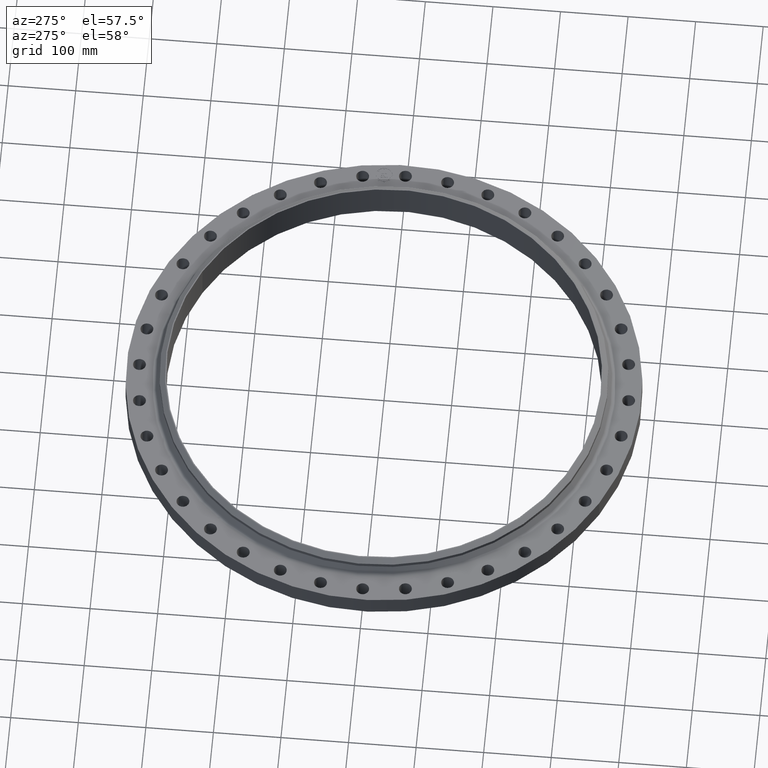
[diagram: clean part render]
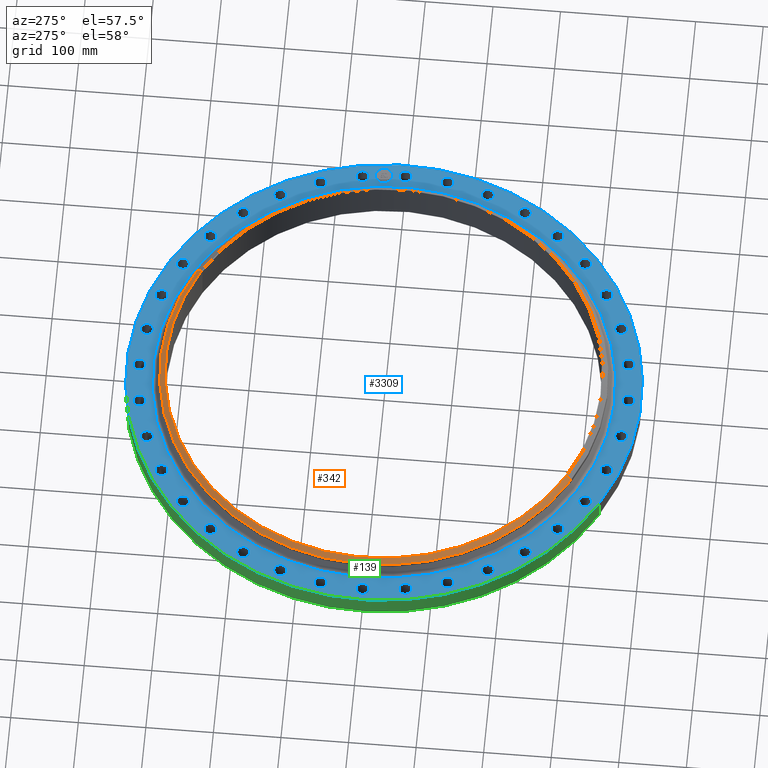
[diagram: same view with three faces highlighted in distinct colors, each labeled with its STEP entity id]
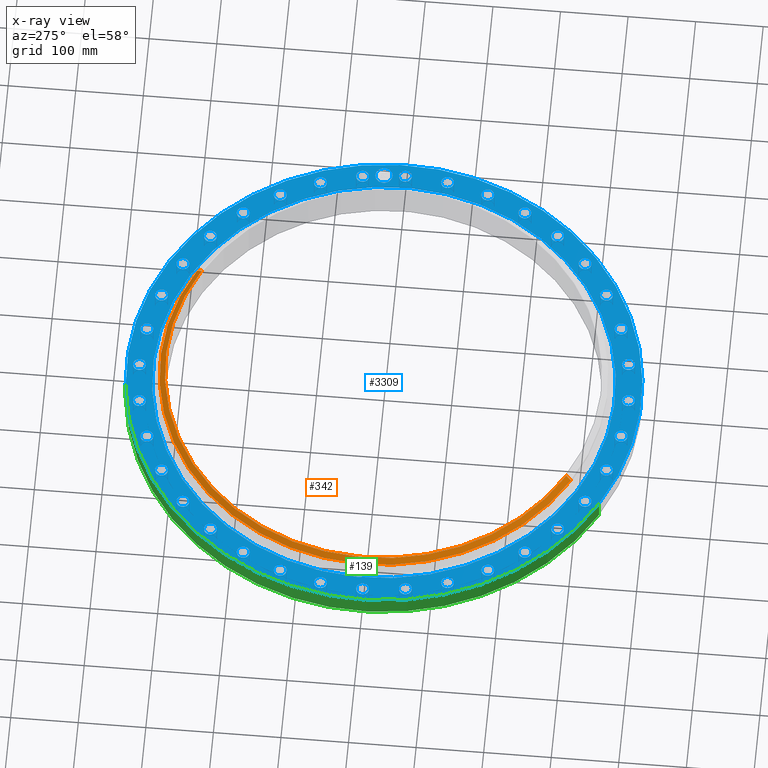
[diagram: x-ray of the same camera — body ghosted, the three highlighted faces saturated]
A machine part, auxiliary view with three faces highlighted in distinct colors.
The next image is the same camera in x-ray (body ghosted, the three faces saturated) — at least one of them is partly hidden behind the body in this view.
Their STEP definitions:

[orange] entity #342 — the highlighted conical surface has half-angle 52.5 deg.
#290=AXIS2_PLACEMENT_3D('Circle Axis2P3D',#288,#289,$) ;
#303=AXIS2_PLACEMENT_3D('Cone Axis2P3D',#300,#301,#302) ;
#333=AXIS2_PLACEMENT_3D('Circle Axis2P3D',#331,#332,$) ;
#266=CARTESIAN_POINT('Vertex',(-6.24691476804,-11.4349007815,2.01021031626)) ;
#273=CARTESIAN_POINT('Vertex',(6.24691476804,11.4349007815,2.01021031626)) ;
#288=CARTESIAN_POINT('Axis2P3D Location',(0.,0.,2.01021031626)) ;
#300=CARTESIAN_POINT('Axis2P3D Location',(0.,0.,2.25000000001)) ;
#305=CARTESIAN_POINT('Line Origine',(6.17200452763,11.2977785062,2.13010515814)) ;
#309=CARTESIAN_POINT('Vertex',(6.09709428722,11.1606562309,2.25000000001)) ;
#316=CARTESIAN_POINT('Vertex',(-6.09709428722,-11.1606562309,2.25000000001)) ;
#319=CARTESIAN_POINT('Line Origine',(-6.17200452763,-11.2977785062,2.13010515814)) ;
#331=CARTESIAN_POINT('Axis2P3D Location',(0.,0.,2.25000000001)) ;
#289=DIRECTION('Axis2P3D Direction',(0.,0.,-0.0393700787402)) ;
#301=DIRECTION('Axis2P3D Direction',(-0.,-0.,-0.0393700787402)) ;
#302=DIRECTION('Axis2P3D XDirection',(-0.0188750212049,-0.0345504945626,0.)) ;
#306=DIRECTION('Vector Direction',(0.014974561121,0.02741075027,-0.023966985394)) ;
#320=DIRECTION('Vector Direction',(-0.014974561121,-0.02741075027,-0.023966985394)) ;
#332=DIRECTION('Axis2P3D Direction',(0.,-0.,-0.0393700787402)) ;
#307=VECTOR('Line Direction',#306,0.0393700787402) ;
#321=VECTOR('Line Direction',#320,0.0393700787402) ;
#337=ORIENTED_EDGE('',*,*,#323,.F.) ;
#338=ORIENTED_EDGE('',*,*,#335,.T.) ;
#339=ORIENTED_EDGE('',*,*,#311,.T.) ;
#340=ORIENTED_EDGE('',*,*,#292,.F.) ;
#342=ADVANCED_FACE('PartBody',(#341),#304,.T.) ;
#291=CIRCLE('generated circle',#290,13.0300000001) ;
#334=CIRCLE('generated circle',#333,12.7175000001) ;
#304=CONICAL_SURFACE('Cone',#303,12.7175000001,0.916297857297) ;
#292=EDGE_CURVE('',#267,#274,#291,.T.) ;
#311=EDGE_CURVE('',#310,#274,#308,.T.) ;
#323=EDGE_CURVE('',#317,#267,#322,.T.) ;
#335=EDGE_CURVE('',#317,#310,#334,.T.) ;
#336=EDGE_LOOP('',(#337,#338,#339,#340)) ;
#341=FACE_OUTER_BOUND('',#336,.T.) ;
#308=LINE('Line',#305,#307) ;
#322=LINE('Line',#319,#321) ;
#267=VERTEX_POINT('',#266) ;
#274=VERTEX_POINT('',#273) ;
#310=VERTEX_POINT('',#309) ;
#317=VERTEX_POINT('',#316) ;

[blue] entity #3309 — the highlighted planar face has unit normal (0, 0, -1).
#65=AXIS2_PLACEMENT_3D('Circle Axis2P3D',#63,#64,$) ;
#89=AXIS2_PLACEMENT_3D('Circle Axis2P3D',#87,#88,$) ;
#123=AXIS2_PLACEMENT_3D('Circle Axis2P3D',#121,#122,$) ;
#147=AXIS2_PLACEMENT_3D('Circle Axis2P3D',#145,#146,$) ;
#164=AXIS2_PLACEMENT_3D('Circle Axis2P3D',#162,#163,$) ;
#199=AXIS2_PLACEMENT_3D('Circle Axis2P3D',#197,#198,$) ;
#1615=AXIS2_PLACEMENT_3D('Circle Axis2P3D',#1613,#1614,$) ;
#1627=AXIS2_PLACEMENT_3D('Circle Axis2P3D',#1625,#1626,$) ;
#1659=AXIS2_PLACEMENT_3D('Circle Axis2P3D',#1657,#1658,$) ;
#1671=AXIS2_PLACEMENT_3D('Circle Axis2P3D',#1669,#1670,$) ;
#1703=AXIS2_PLACEMENT_3D('Circle Axis2P3D',#1701,#1702,$) ;
#1715=AXIS2_PLACEMENT_3D('Circle Axis2P3D',#1713,#1714,$) ;
#1747=AXIS2_PLACEMENT_3D('Circle Axis2P3D',#1745,#1746,$) ;
#1759=AXIS2_PLACEMENT_3D('Circle Axis2P3D',#1757,#1758,$) ;
#1791=AXIS2_PLACEMENT_3D('Circle Axis2P3D',#1789,#1790,$) ;
#1803=AXIS2_PLACEMENT_3D('Circle Axis2P3D',#1801,#1802,$) ;
#1835=AXIS2_PLACEMENT_3D('Circle Axis2P3D',#1833,#1834,$) ;
#1847=AXIS2_PLACEMENT_3D('Circle Axis2P3D',#1845,#1846,$) ;
#1879=AXIS2_PLACEMENT_3D('Circle Axis2P3D',#1877,#1878,$) ;
#1891=AXIS2_PLACEMENT_3D('Circle Axis2P3D',#1889,#1890,$) ;
#1923=AXIS2_PLACEMENT_3D('Circle Axis2P3D',#1921,#1922,$) ;
#1935=AXIS2_PLACEMENT_3D('Circle Axis2P3D',#1933,#1934,$) ;
#1967=AXIS2_PLACEMENT_3D('Circle Axis2P3D',#1965,#1966,$) ;
#1979=AXIS2_PLACEMENT_3D('Circle Axis2P3D',#1977,#1978,$) ;
#2011=AXIS2_PLACEMENT_3D('Circle Axis2P3D',#2009,#2010,$) ;
#2023=AXIS2_PLACEMENT_3D('Circle Axis2P3D',#2021,#2022,$) ;
#2055=AXIS2_PLACEMENT_3D('Circle Axis2P3D',#2053,#2054,$) ;
#2067=AXIS2_PLACEMENT_3D('Circle Axis2P3D',#2065,#2066,$) ;
#2099=AXIS2_PLACEMENT_3D('Circle Axis2P3D',#2097,#2098,$) ;
#2111=AXIS2_PLACEMENT_3D('Circle Axis2P3D',#2109,#2110,$) ;
#2143=AXIS2_PLACEMENT_3D('Circle Axis2P3D',#2141,#2142,$) ;
#2155=AXIS2_PLACEMENT_3D('Circle Axis2P3D',#2153,#2154,$) ;
#2187=AXIS2_PLACEMENT_3D('Circle Axis2P3D',#2185,#2186,$) ;
#2199=AXIS2_PLACEMENT_3D('Circle Axis2P3D',#2197,#2198,$) ;
#2231=AXIS2_PLACEMENT_3D('Circle Axis2P3D',#2229,#2230,$) ;
#2243=AXIS2_PLACEMENT_3D('Circle Axis2P3D',#2241,#2242,$) ;
#2275=AXIS2_PLACEMENT_3D('Circle Axis2P3D',#2273,#2274,$) ;
#2287=AXIS2_PLACEMENT_3D('Circle Axis2P3D',#2285,#2286,$) ;
#2319=AXIS2_PLACEMENT_3D('Circle Axis2P3D',#2317,#2318,$) ;
#2331=AXIS2_PLACEMENT_3D('Circle Axis2P3D',#2329,#2330,$) ;
#2363=AXIS2_PLACEMENT_3D('Circle Axis2P3D',#2361,#2362,$) ;
#2375=AXIS2_PLACEMENT_3D('Circle Axis2P3D',#2373,#2374,$) ;
#2407=AXIS2_PLACEMENT_3D('Circle Axis2P3D',#2405,#2406,$) ;
#2419=AXIS2_PLACEMENT_3D('Circle Axis2P3D',#2417,#2418,$) ;
#2451=AXIS2_PLACEMENT_3D('Circle Axis2P3D',#2449,#2450,$) ;
#2463=AXIS2_PLACEMENT_3D('Circle Axis2P3D',#2461,#2462,$) ;
#2495=AXIS2_PLACEMENT_3D('Circle Axis2P3D',#2493,#2494,$) ;
#2507=AXIS2_PLACEMENT_3D('Circle Axis2P3D',#2505,#2506,$) ;
#2539=AXIS2_PLACEMENT_3D('Circle Axis2P3D',#2537,#2538,$) ;
#2551=AXIS2_PLACEMENT_3D('Circle Axis2P3D',#2549,#2550,$) ;
#2583=AXIS2_PLACEMENT_3D('Circle Axis2P3D',#2581,#2582,$) ;
#2595=AXIS2_PLACEMENT_3D('Circle Axis2P3D',#2593,#2594,$) ;
#2627=AXIS2_PLACEMENT_3D('Circle Axis2P3D',#2625,#2626,$) ;
#2639=AXIS2_PLACEMENT_3D('Circle Axis2P3D',#2637,#2638,$) ;
#2671=AXIS2_PLACEMENT_3D('Circle Axis2P3D',#2669,#2670,$) ;
#2683=AXIS2_PLACEMENT_3D('Circle Axis2P3D',#2681,#2682,$) ;
#2715=AXIS2_PLACEMENT_3D('Circle Axis2P3D',#2713,#2714,$) ;
#2727=AXIS2_PLACEMENT_3D('Circle Axis2P3D',#2725,#2726,$) ;
#2759=AXIS2_PLACEMENT_3D('Circle Axis2P3D',#2757,#2758,$) ;
#2771=AXIS2_PLACEMENT_3D('Circle Axis2P3D',#2769,#2770,$) ;
#2803=AXIS2_PLACEMENT_3D('Circle Axis2P3D',#2801,#2802,$) ;
#2815=AXIS2_PLACEMENT_3D('Circle Axis2P3D',#2813,#2814,$) ;
#2847=AXIS2_PLACEMENT_3D('Circle Axis2P3D',#2845,#2846,$) ;
#2859=AXIS2_PLACEMENT_3D('Circle Axis2P3D',#2857,#2858,$) ;
#2891=AXIS2_PLACEMENT_3D('Circle Axis2P3D',#2889,#2890,$) ;
#2903=AXIS2_PLACEMENT_3D('Circle Axis2P3D',#2901,#2902,$) ;
#2935=AXIS2_PLACEMENT_3D('Circle Axis2P3D',#2933,#2934,$) ;
#2947=AXIS2_PLACEMENT_3D('Circle Axis2P3D',#2945,#2946,$) ;
#2979=AXIS2_PLACEMENT_3D('Circle Axis2P3D',#2977,#2978,$) ;
#2991=AXIS2_PLACEMENT_3D('Circle Axis2P3D',#2989,#2990,$) ;
#3023=AXIS2_PLACEMENT_3D('Circle Axis2P3D',#3021,#3022,$) ;
#3035=AXIS2_PLACEMENT_3D('Circle Axis2P3D',#3033,#3034,$) ;
#3067=AXIS2_PLACEMENT_3D('Circle Axis2P3D',#3065,#3066,$) ;
#3079=AXIS2_PLACEMENT_3D('Circle Axis2P3D',#3077,#3078,$) ;
#3111=AXIS2_PLACEMENT_3D('Circle Axis2P3D',#3109,#3110,$) ;
#3123=AXIS2_PLACEMENT_3D('Circle Axis2P3D',#3121,#3122,$) ;
#3137=AXIS2_PLACEMENT_3D('Plane Axis2P3D',#3134,#3135,#3136) ;
#3293=AXIS2_PLACEMENT_3D('Circle Axis2P3D',#3291,#3292,$) ;
#3302=AXIS2_PLACEMENT_3D('Circle Axis2P3D',#3300,#3301,$) ;
#46=CARTESIAN_POINT('Vertex',(13.9209065393,0.179784576977,1.25000000001)) ;
#60=CARTESIAN_POINT('Vertex',(14.5790934608,-0.179784576977,1.25000000001)) ;
#63=CARTESIAN_POINT('Axis2P3D Location',(14.2500000001,0.,1.25000000001)) ;
#87=CARTESIAN_POINT('Axis2P3D Location',(14.2500000001,0.,1.25000000001)) ;
#118=CARTESIAN_POINT('Vertex',(-7.19138307909,-13.1637384284,1.25000000001)) ;
#121=CARTESIAN_POINT('Axis2P3D Location',(0.,0.,1.25000000001)) ;
#125=CARTESIAN_POINT('Vertex',(7.19138307909,13.1637384284,1.25000000001)) ;
#145=CARTESIAN_POINT('Axis2P3D Location',(0.,0.,1.25000000001)) ;
#162=CARTESIAN_POINT('Axis2P3D Location',(0.,0.,1.25000000001)) ;
#166=CARTESIAN_POINT('Vertex',(6.45300255236,11.8121419403,1.25000000001)) ;
#168=CARTESIAN_POINT('Vertex',(-6.45300255236,-11.8121419403,1.25000000001)) ;
#197=CARTESIAN_POINT('Axis2P3D Location',(0.,0.,1.25000000001)) ;
#1603=CARTESIAN_POINT('Vertex',(-13.9209065393,-0.179784576977,1.25000000001)) ;
#1610=CARTESIAN_POINT('Vertex',(-14.5790934608,0.179784576977,1.25000000001)) ;
#1613=CARTESIAN_POINT('Axis2P3D Location',(-14.2500000001,-1.74512168879E-015,1.25000000001)) ;
#1625=CARTESIAN_POINT('Axis2P3D Location',(-14.2500000001,-1.74512168879E-015,1.25000000001)) ;
#1647=CARTESIAN_POINT('Vertex',(13.6781974247,2.59439329731,1.25000000001)) ;
#1654=CARTESIAN_POINT('Vertex',(14.3888235362,2.35457976622,1.25000000001)) ;
#1657=CARTESIAN_POINT('Axis2P3D Location',(14.0335104805,2.47448653176,1.25000000001)) ;
#1669=CARTESIAN_POINT('Axis2P3D Location',(14.0335104805,2.47448653176,1.25000000001)) ;
#1691=CARTESIAN_POINT('Vertex',(-13.6781974247,-2.59439329731,1.25000000001)) ;
#1698=CARTESIAN_POINT('Vertex',(-14.3888235362,-2.35457976622,1.25000000001)) ;
#1701=CARTESIAN_POINT('Axis2P3D Location',(-14.0335104805,-2.47448653176,1.25000000001)) ;
#1713=CARTESIAN_POINT('Axis2P3D Location',(-14.0335104805,-2.47448653176,1.25000000001)) ;
#1735=CARTESIAN_POINT('Vertex',(13.7406359531,-2.24028680675,1.25000000001)) ;
#1742=CARTESIAN_POINT('Vertex',(14.3263850079,-2.70868625678,1.25000000001)) ;
#1745=CARTESIAN_POINT('Axis2P3D Location',(14.0335104805,-2.47448653176,1.25000000001)) ;
#1757=CARTESIAN_POINT('Axis2P3D Location',(14.0335104805,-2.47448653176,1.25000000001)) ;
#1779=CARTESIAN_POINT('Vertex',(-7.11615128054,11.9659664183,1.25000000001)) ;
#1786=CARTESIAN_POINT('Vertex',(-7.13384871951,12.7157575897,1.25000000001)) ;
#1789=CARTESIAN_POINT('Axis2P3D Location',(-7.12500000003,12.340862004,1.25000000001)) ;
#1801=CARTESIAN_POINT('Axis2P3D Location',(-7.12500000003,12.340862004,1.25000000001)) ;
#1823=CARTESIAN_POINT('Vertex',(10.5484697992,9.08590921525,1.25000000001)) ;
#1830=CARTESIAN_POINT('Vertex',(11.2837968298,9.23353766089,1.25000000001)) ;
#1833=CARTESIAN_POINT('Axis2P3D Location',(10.9161333145,9.15972343807,1.25000000001)) ;
#1845=CARTESIAN_POINT('Axis2P3D Location',(10.9161333145,9.15972343807,1.25000000001)) ;
#1867=CARTESIAN_POINT('Vertex',(-13.1428630965,4.59228820949,1.25000000001)) ;
#1874=CARTESIAN_POINT('Vertex',(-13.638376596,5.15528587533,1.25000000001)) ;
#1877=CARTESIAN_POINT('Axis2P3D Location',(-13.3906198463,4.87378704241,1.25000000001)) ;
#1889=CARTESIAN_POINT('Axis2P3D Location',(-13.3906198463,4.87378704241,1.25000000001)) ;
#1911=CARTESIAN_POINT('Vertex',(12.1457509953,-6.8047552588,1.25000000001)) ;
#1918=CARTESIAN_POINT('Vertex',(12.5359730127,-7.44524474125,1.25000000001)) ;
#1921=CARTESIAN_POINT('Axis2P3D Location',(12.340862004,-7.12500000003,1.25000000001)) ;
#1933=CARTESIAN_POINT('Axis2P3D Location',(12.340862004,-7.12500000003,1.25000000001)) ;
#1955=CARTESIAN_POINT('Vertex',(2.24028680675,13.7406359531,1.25000000001)) ;
#1962=CARTESIAN_POINT('Vertex',(2.70868625678,14.3263850079,1.25000000001)) ;
#1965=CARTESIAN_POINT('Axis2P3D Location',(2.47448653176,14.0335104805,1.25000000001)) ;
#1977=CARTESIAN_POINT('Axis2P3D Location',(2.47448653176,14.0335104805,1.25000000001)) ;
#1999=CARTESIAN_POINT('Vertex',(10.7795963961,-8.81046326294,1.25000000001)) ;
#2006=CARTESIAN_POINT('Vertex',(11.0526702328,-9.5089836132,1.25000000001)) ;
#2009=CARTESIAN_POINT('Axis2P3D Location',(10.9161333145,-9.15972343807,1.25000000001)) ;
#2021=CARTESIAN_POINT('Axis2P3D Location',(10.9161333145,-9.15972343807,1.25000000001)) ;
#2043=CARTESIAN_POINT('Vertex',(11.9659664183,7.11615128054,1.25000000001)) ;
#2050=CARTESIAN_POINT('Vertex',(12.7157575897,7.13384871951,1.25000000001)) ;
#2053=CARTESIAN_POINT('Axis2P3D Location',(12.340862004,7.12500000003,1.25000000001)) ;
#2065=CARTESIAN_POINT('Axis2P3D Location',(12.340862004,7.12500000003,1.25000000001)) ;
#2087=CARTESIAN_POINT('Vertex',(9.08590921525,-10.5484697992,1.25000000001)) ;
#2094=CARTESIAN_POINT('Vertex',(9.23353766089,-11.2837968298,1.25000000001)) ;
#2097=CARTESIAN_POINT('Axis2P3D Location',(9.15972343807,-10.9161333145,1.25000000001)) ;
#2109=CARTESIAN_POINT('Axis2P3D Location',(9.15972343807,-10.9161333145,1.25000000001)) ;
#2131=CARTESIAN_POINT('Vertex',(-10.7795963961,8.81046326294,1.25000000001)) ;
#2138=CARTESIAN_POINT('Vertex',(-11.0526702328,9.5089836132,1.25000000001)) ;
#2141=CARTESIAN_POINT('Axis2P3D Location',(-10.9161333145,9.15972343807,1.25000000001)) ;
#2153=CARTESIAN_POINT('Axis2P3D Location',(-10.9161333145,9.15972343807,1.25000000001)) ;
#2175=CARTESIAN_POINT('Vertex',(7.11615128054,-11.9659664183,1.25000000001)) ;
#2182=CARTESIAN_POINT('Vertex',(7.13384871951,-12.7157575897,1.25000000001)) ;
#2185=CARTESIAN_POINT('Axis2P3D Location',(7.12500000003,-12.340862004,1.25000000001)) ;
#2197=CARTESIAN_POINT('Axis2P3D Location',(7.12500000003,-12.340862004,1.25000000001)) ;
#2219=CARTESIAN_POINT('Vertex',(-2.59439329731,13.6781974247,1.25000000001)) ;
#2226=CARTESIAN_POINT('Vertex',(-2.35457976622,14.3888235362,1.25000000001)) ;
#2229=CARTESIAN_POINT('Axis2P3D Location',(-2.47448653176,14.0335104805,1.25000000001)) ;
#2241=CARTESIAN_POINT('Axis2P3D Location',(-2.47448653176,14.0335104805,1.25000000001)) ;
#2263=CARTESIAN_POINT('Vertex',(4.93017269013,-13.0198832029,1.25000000001)) ;
#2270=CARTESIAN_POINT('Vertex',(4.81740139469,-13.7613564896,1.25000000001)) ;
#2273=CARTESIAN_POINT('Axis2P3D Location',(4.87378704241,-13.3906198463,1.25000000001)) ;
#2285=CARTESIAN_POINT('Axis2P3D Location',(4.87378704241,-13.3906198463,1.25000000001)) ;
#2307=CARTESIAN_POINT('Vertex',(6.8047552588,12.1457509953,1.25000000001)) ;
#2314=CARTESIAN_POINT('Vertex',(7.44524474125,12.5359730127,1.25000000001)) ;
#2317=CARTESIAN_POINT('Axis2P3D Location',(7.12500000003,12.340862004,1.25000000001)) ;
#2329=CARTESIAN_POINT('Axis2P3D Location',(7.12500000003,12.340862004,1.25000000001)) ;
#2351=CARTESIAN_POINT('Vertex',(2.59439329731,-13.6781974247,1.25000000001)) ;
#2358=CARTESIAN_POINT('Vertex',(2.35457976622,-14.3888235362,1.25000000001)) ;
#2361=CARTESIAN_POINT('Axis2P3D Location',(2.47448653176,-14.0335104805,1.25000000001)) ;
#2373=CARTESIAN_POINT('Axis2P3D Location',(2.47448653176,-14.0335104805,1.25000000001)) ;
#2395=CARTESIAN_POINT('Vertex',(13.0198832029,4.93017269013,1.25000000001)) ;
#2402=CARTESIAN_POINT('Vertex',(13.7613564896,4.81740139469,1.25000000001)) ;
#2405=CARTESIAN_POINT('Axis2P3D Location',(13.3906198463,4.87378704241,1.25000000001)) ;
#2417=CARTESIAN_POINT('Axis2P3D Location',(13.3906198463,4.87378704241,1.25000000001)) ;
#2439=CARTESIAN_POINT('Vertex',(0.179784576977,-13.9209065393,1.25000000001)) ;
#2446=CARTESIAN_POINT('Vertex',(-0.179784576977,-14.5790934608,1.25000000001)) ;
#2449=CARTESIAN_POINT('Axis2P3D Location',(8.72560844396E-016,-14.2500000001,1.25000000001)) ;
#2461=CARTESIAN_POINT('Axis2P3D Location',(8.72560844396E-016,-14.2500000001,1.25000000001)) ;
#2483=CARTESIAN_POINT('Vertex',(-13.7406359531,2.24028680675,1.25000000001)) ;
#2490=CARTESIAN_POINT('Vertex',(-14.3263850079,2.70868625678,1.25000000001)) ;
#2493=CARTESIAN_POINT('Axis2P3D Location',(-14.0335104805,2.47448653176,1.25000000001)) ;
#2505=CARTESIAN_POINT('Axis2P3D Location',(-14.0335104805,2.47448653176,1.25000000001)) ;
#2527=CARTESIAN_POINT('Vertex',(-2.24028680675,-13.7406359531,1.25000000001)) ;
#2534=CARTESIAN_POINT('Vertex',(-2.70868625678,-14.3263850079,1.25000000001)) ;
#2537=CARTESIAN_POINT('Axis2P3D Location',(-2.47448653176,-14.0335104805,1.25000000001)) ;
#2549=CARTESIAN_POINT('Axis2P3D Location',(-2.47448653176,-14.0335104805,1.25000000001)) ;
#2571=CARTESIAN_POINT('Vertex',(-12.1457509953,6.8047552588,1.25000000001)) ;
#2578=CARTESIAN_POINT('Vertex',(-12.5359730127,7.44524474125,1.25000000001)) ;
#2581=CARTESIAN_POINT('Axis2P3D Location',(-12.340862004,7.12500000003,1.25000000001)) ;
#2593=CARTESIAN_POINT('Axis2P3D Location',(-12.340862004,7.12500000003,1.25000000001)) ;
#2615=CARTESIAN_POINT('Vertex',(-4.59228820949,-13.1428630965,1.25000000001)) ;
#2622=CARTESIAN_POINT('Vertex',(-5.15528587533,-13.638376596,1.25000000001)) ;
#2625=CARTESIAN_POINT('Axis2P3D Location',(-4.87378704241,-13.3906198463,1.25000000001)) ;
#2637=CARTESIAN_POINT('Axis2P3D Location',(-4.87378704241,-13.3906198463,1.25000000001)) ;
#2659=CARTESIAN_POINT('Vertex',(-9.08590921525,10.5484697992,1.25000000001)) ;
#2666=CARTESIAN_POINT('Vertex',(-9.23353766089,11.2837968298,1.25000000001)) ;
#2669=CARTESIAN_POINT('Axis2P3D Location',(-9.15972343807,10.9161333145,1.25000000001)) ;
#2681=CARTESIAN_POINT('Axis2P3D Location',(-9.15972343807,10.9161333145,1.25000000001)) ;
#2703=CARTESIAN_POINT('Vertex',(-6.8047552588,-12.1457509953,1.25000000001)) ;
#2710=CARTESIAN_POINT('Vertex',(-7.44524474125,-12.5359730127,1.25000000001)) ;
#2713=CARTESIAN_POINT('Axis2P3D Location',(-7.12500000003,-12.340862004,1.25000000001)) ;
#2725=CARTESIAN_POINT('Axis2P3D Location',(-7.12500000003,-12.340862004,1.25000000001)) ;
#2747=CARTESIAN_POINT('Vertex',(-4.93017269013,13.0198832029,1.25000000001)) ;
#2754=CARTESIAN_POINT('Vertex',(-4.81740139469,13.7613564896,1.25000000001)) ;
#2757=CARTESIAN_POINT('Axis2P3D Location',(-4.87378704241,13.3906198463,1.25000000001)) ;
#2769=CARTESIAN_POINT('Axis2P3D Location',(-4.87378704241,13.3906198463,1.25000000001)) ;
#2791=CARTESIAN_POINT('Vertex',(-8.81046326294,-10.7795963961,1.25000000001)) ;
#2798=CARTESIAN_POINT('Vertex',(-9.5089836132,-11.0526702328,1.25000000001)) ;
#2801=CARTESIAN_POINT('Axis2P3D Location',(-9.15972343807,-10.9161333145,1.25000000001)) ;
#2813=CARTESIAN_POINT('Axis2P3D Location',(-9.15972343807,-10.9161333145,1.25000000001)) ;
#2835=CARTESIAN_POINT('Vertex',(-0.179784576977,13.9209065393,1.25000000001)) ;
#2842=CARTESIAN_POINT('Vertex',(0.179784576977,14.5790934608,1.25000000001)) ;
#2845=CARTESIAN_POINT('Axis2P3D Location',(-4.8556124096E-015,14.2500000001,1.25000000001)) ;
#2857=CARTESIAN_POINT('Axis2P3D Location',(-4.8556124096E-015,14.2500000001,1.25000000001)) ;
#2879=CARTESIAN_POINT('Vertex',(-10.5484697992,-9.08590921525,1.25000000001)) ;
#2886=CARTESIAN_POINT('Vertex',(-11.2837968298,-9.23353766089,1.25000000001)) ;
#2889=CARTESIAN_POINT('Axis2P3D Location',(-10.9161333145,-9.15972343807,1.25000000001)) ;
#2901=CARTESIAN_POINT('Axis2P3D Location',(-10.9161333145,-9.15972343807,1.25000000001)) ;
#2923=CARTESIAN_POINT('Vertex',(4.59228820949,13.1428630965,1.25000000001)) ;
#2930=CARTESIAN_POINT('Vertex',(5.15528587533,13.638376596,1.25000000001)) ;
#2933=CARTESIAN_POINT('Axis2P3D Location',(4.87378704241,13.3906198463,1.25000000001)) ;
#2945=CARTESIAN_POINT('Axis2P3D Location',(4.87378704241,13.3906198463,1.25000000001)) ;
#2967=CARTESIAN_POINT('Vertex',(-11.9659664183,-7.11615128054,1.25000000001)) ;
#2974=CARTESIAN_POINT('Vertex',(-12.7157575897,-7.13384871951,1.25000000001)) ;
#2977=CARTESIAN_POINT('Axis2P3D Location',(-12.340862004,-7.12500000003,1.25000000001)) ;
#2989=CARTESIAN_POINT('Axis2P3D Location',(-12.340862004,-7.12500000003,1.25000000001)) ;
#3011=CARTESIAN_POINT('Vertex',(8.81046326294,10.7795963961,1.25000000001)) ;
#3018=CARTESIAN_POINT('Vertex',(9.5089836132,11.0526702328,1.25000000001)) ;
#3021=CARTESIAN_POINT('Axis2P3D Location',(9.15972343807,10.9161333145,1.25000000001)) ;
#3033=CARTESIAN_POINT('Axis2P3D Location',(9.15972343807,10.9161333145,1.25000000001)) ;
#3055=CARTESIAN_POINT('Vertex',(-13.0198832029,-4.93017269013,1.25000000001)) ;
#3062=CARTESIAN_POINT('Vertex',(-13.7613564896,-4.81740139469,1.25000000001)) ;
#3065=CARTESIAN_POINT('Axis2P3D Location',(-13.3906198463,-4.87378704241,1.25000000001)) ;
#3077=CARTESIAN_POINT('Axis2P3D Location',(-13.3906198463,-4.87378704241,1.25000000001)) ;
#3099=CARTESIAN_POINT('Vertex',(13.1428630965,-4.59228820949,1.25000000001)) ;
#3106=CARTESIAN_POINT('Vertex',(13.638376596,-5.15528587533,1.25000000001)) ;
#3109=CARTESIAN_POINT('Axis2P3D Location',(13.3906198463,-4.87378704241,1.25000000001)) ;
#3121=CARTESIAN_POINT('Axis2P3D Location',(13.3906198463,-4.87378704241,1.25000000001)) ;
#3134=CARTESIAN_POINT('Axis2P3D Location',(0.,15.0000000001,1.25000000001)) ;
#3291=CARTESIAN_POINT('Axis2P3D Location',(14.1957744479,1.24196933416,1.25000000001)) ;
#3295=CARTESIAN_POINT('Vertex',(14.1521966764,1.74006554156,1.25000000001)) ;
#3297=CARTESIAN_POINT('Vertex',(14.2393522194,0.743873126753,1.25000000001)) ;
#3300=CARTESIAN_POINT('Axis2P3D Location',(14.1957744479,1.24196933416,1.25000000001)) ;
#64=DIRECTION('Axis2P3D Direction',(0.,-0.,-0.0393700787402)) ;
#88=DIRECTION('Axis2P3D Direction',(0.,-0.,-0.0393700787402)) ;
#122=DIRECTION('Axis2P3D Direction',(0.,0.,-0.0393700787402)) ;
#146=DIRECTION('Axis2P3D Direction',(0.,0.,-0.0393700787402)) ;
#163=DIRECTION('Axis2P3D Direction',(0.,0.,-0.0393700787402)) ;
#198=DIRECTION('Axis2P3D Direction',(0.,0.,-0.0393700787402)) ;
#1614=DIRECTION('Axis2P3D Direction',(-0.,0.,-0.0393700787402)) ;
#1626=DIRECTION('Axis2P3D Direction',(-0.,0.,-0.0393700787402)) ;
#1658=DIRECTION('Axis2P3D Direction',(0.,0.,-0.0393700787402)) ;
#1670=DIRECTION('Axis2P3D Direction',(0.,0.,-0.0393700787402)) ;
#1702=DIRECTION('Axis2P3D Direction',(-0.,0.,-0.0393700787402)) ;
#1714=DIRECTION('Axis2P3D Direction',(-0.,0.,-0.0393700787402)) ;
#1746=DIRECTION('Axis2P3D Direction',(0.,-0.,-0.0393700787402)) ;
#1758=DIRECTION('Axis2P3D Direction',(0.,-0.,-0.0393700787402)) ;
#1790=DIRECTION('Axis2P3D Direction',(0.,0.,-0.0393700787402)) ;
#1802=DIRECTION('Axis2P3D Direction',(0.,0.,-0.0393700787402)) ;
#1834=DIRECTION('Axis2P3D Direction',(0.,0.,-0.0393700787402)) ;
#1846=DIRECTION('Axis2P3D Direction',(0.,0.,-0.0393700787402)) ;
#1878=DIRECTION('Axis2P3D Direction',(0.,0.,-0.0393700787402)) ;
#1890=DIRECTION('Axis2P3D Direction',(0.,0.,-0.0393700787402)) ;
#1922=DIRECTION('Axis2P3D Direction',(0.,-0.,-0.0393700787402)) ;
#1934=DIRECTION('Axis2P3D Direction',(0.,-0.,-0.0393700787402)) ;
#1966=DIRECTION('Axis2P3D Direction',(0.,0.,-0.0393700787402)) ;
#1978=DIRECTION('Axis2P3D Direction',(0.,0.,-0.0393700787402)) ;
#2010=DIRECTION('Axis2P3D Direction',(0.,-0.,-0.0393700787402)) ;
#2022=DIRECTION('Axis2P3D Direction',(0.,-0.,-0.0393700787402)) ;
#2054=DIRECTION('Axis2P3D Direction',(0.,0.,-0.0393700787402)) ;
#2066=DIRECTION('Axis2P3D Direction',(0.,0.,-0.0393700787402)) ;
#2098=DIRECTION('Axis2P3D Direction',(0.,-0.,-0.0393700787402)) ;
#2110=DIRECTION('Axis2P3D Direction',(0.,-0.,-0.0393700787402)) ;
#2142=DIRECTION('Axis2P3D Direction',(0.,0.,-0.0393700787402)) ;
#2154=DIRECTION('Axis2P3D Direction',(0.,0.,-0.0393700787402)) ;
#2186=DIRECTION('Axis2P3D Direction',(0.,-0.,-0.0393700787402)) ;
#2198=DIRECTION('Axis2P3D Direction',(0.,-0.,-0.0393700787402)) ;
#2230=DIRECTION('Axis2P3D Direction',(0.,0.,-0.0393700787402)) ;
#2242=DIRECTION('Axis2P3D Direction',(0.,0.,-0.0393700787402)) ;
#2274=DIRECTION('Axis2P3D Direction',(0.,-0.,-0.0393700787402)) ;
#2286=DIRECTION('Axis2P3D Direction',(0.,-0.,-0.0393700787402)) ;
#2318=DIRECTION('Axis2P3D Direction',(0.,0.,-0.0393700787402)) ;
#2330=DIRECTION('Axis2P3D Direction',(0.,0.,-0.0393700787402)) ;
#2362=DIRECTION('Axis2P3D Direction',(0.,-0.,-0.0393700787402)) ;
#2374=DIRECTION('Axis2P3D Direction',(0.,-0.,-0.0393700787402)) ;
#2406=DIRECTION('Axis2P3D Direction',(0.,0.,-0.0393700787402)) ;
#2418=DIRECTION('Axis2P3D Direction',(0.,0.,-0.0393700787402)) ;
#2450=DIRECTION('Axis2P3D Direction',(0.,-0.,-0.0393700787402)) ;
#2462=DIRECTION('Axis2P3D Direction',(0.,-0.,-0.0393700787402)) ;
#2494=DIRECTION('Axis2P3D Direction',(0.,0.,-0.0393700787402)) ;
#2506=DIRECTION('Axis2P3D Direction',(0.,0.,-0.0393700787402)) ;
#2538=DIRECTION('Axis2P3D Direction',(-0.,0.,-0.0393700787402)) ;
#2550=DIRECTION('Axis2P3D Direction',(-0.,0.,-0.0393700787402)) ;
#2582=DIRECTION('Axis2P3D Direction',(0.,0.,-0.0393700787402)) ;
#2594=DIRECTION('Axis2P3D Direction',(0.,0.,-0.0393700787402)) ;
#2626=DIRECTION('Axis2P3D Direction',(-0.,0.,-0.0393700787402)) ;
#2638=DIRECTION('Axis2P3D Direction',(-0.,0.,-0.0393700787402)) ;
#2670=DIRECTION('Axis2P3D Direction',(0.,0.,-0.0393700787402)) ;
#2682=DIRECTION('Axis2P3D Direction',(0.,0.,-0.0393700787402)) ;
#2714=DIRECTION('Axis2P3D Direction',(-0.,0.,-0.0393700787402)) ;
#2726=DIRECTION('Axis2P3D Direction',(-0.,0.,-0.0393700787402)) ;
#2758=DIRECTION('Axis2P3D Direction',(0.,0.,-0.0393700787402)) ;
#2770=DIRECTION('Axis2P3D Direction',(0.,0.,-0.0393700787402)) ;
#2802=DIRECTION('Axis2P3D Direction',(-0.,0.,-0.0393700787402)) ;
#2814=DIRECTION('Axis2P3D Direction',(-0.,0.,-0.0393700787402)) ;
#2846=DIRECTION('Axis2P3D Direction',(0.,0.,-0.0393700787402)) ;
#2858=DIRECTION('Axis2P3D Direction',(0.,0.,-0.0393700787402)) ;
#2890=DIRECTION('Axis2P3D Direction',(-0.,0.,-0.0393700787402)) ;
#2902=DIRECTION('Axis2P3D Direction',(-0.,0.,-0.0393700787402)) ;
#2934=DIRECTION('Axis2P3D Direction',(0.,0.,-0.0393700787402)) ;
#2946=DIRECTION('Axis2P3D Direction',(0.,0.,-0.0393700787402)) ;
#2978=DIRECTION('Axis2P3D Direction',(-0.,0.,-0.0393700787402)) ;
#2990=DIRECTION('Axis2P3D Direction',(-0.,0.,-0.0393700787402)) ;
#3022=DIRECTION('Axis2P3D Direction',(0.,0.,-0.0393700787402)) ;
#3034=DIRECTION('Axis2P3D Direction',(0.,0.,-0.0393700787402)) ;
#3066=DIRECTION('Axis2P3D Direction',(-0.,0.,-0.0393700787402)) ;
#3078=DIRECTION('Axis2P3D Direction',(-0.,0.,-0.0393700787402)) ;
#3110=DIRECTION('Axis2P3D Direction',(0.,-0.,-0.0393700787402)) ;
#3122=DIRECTION('Axis2P3D Direction',(0.,-0.,-0.0393700787402)) ;
#3135=DIRECTION('Axis2P3D Direction',(0.,0.,-0.0393700787402)) ;
#3136=DIRECTION('Axis2P3D XDirection',(0.0393700787402,0.,0.)) ;
#3292=DIRECTION('Axis2P3D Direction',(0.,0.,-0.0393700787402)) ;
#3301=DIRECTION('Axis2P3D Direction',(0.,0.,-0.0393700787402)) ;
#3140=ORIENTED_EDGE('',*,*,#149,.F.) ;
#3141=ORIENTED_EDGE('',*,*,#127,.F.) ;
#3144=ORIENTED_EDGE('',*,*,#67,.T.) ;
#3145=ORIENTED_EDGE('',*,*,#91,.T.) ;
#3148=ORIENTED_EDGE('',*,*,#201,.T.) ;
#3149=ORIENTED_EDGE('',*,*,#170,.T.) ;
#3152=ORIENTED_EDGE('',*,*,#1761,.T.) ;
#3153=ORIENTED_EDGE('',*,*,#1749,.T.) ;
#3156=ORIENTED_EDGE('',*,*,#3125,.T.) ;
#3157=ORIENTED_EDGE('',*,*,#3113,.T.) ;
#3160=ORIENTED_EDGE('',*,*,#1937,.T.) ;
#3161=ORIENTED_EDGE('',*,*,#1925,.T.) ;
#3164=ORIENTED_EDGE('',*,*,#2025,.T.) ;
#3165=ORIENTED_EDGE('',*,*,#2013,.T.) ;
#3168=ORIENTED_EDGE('',*,*,#2113,.T.) ;
#3169=ORIENTED_EDGE('',*,*,#2101,.T.) ;
#3172=ORIENTED_EDGE('',*,*,#2201,.T.) ;
#3173=ORIENTED_EDGE('',*,*,#2189,.T.) ;
#3176=ORIENTED_EDGE('',*,*,#2289,.T.) ;
#3177=ORIENTED_EDGE('',*,*,#2277,.T.) ;
#3180=ORIENTED_EDGE('',*,*,#2377,.T.) ;
#3181=ORIENTED_EDGE('',*,*,#2365,.T.) ;
#3184=ORIENTED_EDGE('',*,*,#2465,.T.) ;
#3185=ORIENTED_EDGE('',*,*,#2453,.T.) ;
#3188=ORIENTED_EDGE('',*,*,#2553,.T.) ;
#3189=ORIENTED_EDGE('',*,*,#2541,.T.) ;
#3192=ORIENTED_EDGE('',*,*,#2641,.T.) ;
#3193=ORIENTED_EDGE('',*,*,#2629,.T.) ;
#3196=ORIENTED_EDGE('',*,*,#2729,.T.) ;
#3197=ORIENTED_EDGE('',*,*,#2717,.T.) ;
#3200=ORIENTED_EDGE('',*,*,#2817,.T.) ;
#3201=ORIENTED_EDGE('',*,*,#2805,.T.) ;
#3204=ORIENTED_EDGE('',*,*,#2905,.T.) ;
#3205=ORIENTED_EDGE('',*,*,#2893,.T.) ;
#3208=ORIENTED_EDGE('',*,*,#2993,.T.) ;
#3209=ORIENTED_EDGE('',*,*,#2981,.T.) ;
#3212=ORIENTED_EDGE('',*,*,#3081,.T.) ;
#3213=ORIENTED_EDGE('',*,*,#3069,.T.) ;
#3216=ORIENTED_EDGE('',*,*,#1717,.T.) ;
#3217=ORIENTED_EDGE('',*,*,#1705,.T.) ;
#3220=ORIENTED_EDGE('',*,*,#1629,.T.) ;
#3221=ORIENTED_EDGE('',*,*,#1617,.T.) ;
#3224=ORIENTED_EDGE('',*,*,#2509,.T.) ;
#3225=ORIENTED_EDGE('',*,*,#2497,.T.) ;
#3228=ORIENTED_EDGE('',*,*,#1893,.T.) ;
#3229=ORIENTED_EDGE('',*,*,#1881,.T.) ;
#3232=ORIENTED_EDGE('',*,*,#2597,.T.) ;
#3233=ORIENTED_EDGE('',*,*,#2585,.T.) ;
#3236=ORIENTED_EDGE('',*,*,#2157,.T.) ;
#3237=ORIENTED_EDGE('',*,*,#2145,.T.) ;
#3240=ORIENTED_EDGE('',*,*,#2685,.T.) ;
#3241=ORIENTED_EDGE('',*,*,#2673,.T.) ;
#3244=ORIENTED_EDGE('',*,*,#1805,.T.) ;
#3245=ORIENTED_EDGE('',*,*,#1793,.T.) ;
#3248=ORIENTED_EDGE('',*,*,#2773,.T.) ;
#3249=ORIENTED_EDGE('',*,*,#2761,.T.) ;
#3252=ORIENTED_EDGE('',*,*,#2245,.T.) ;
#3253=ORIENTED_EDGE('',*,*,#2233,.T.) ;
#3256=ORIENTED_EDGE('',*,*,#2861,.T.) ;
#3257=ORIENTED_EDGE('',*,*,#2849,.T.) ;
#3260=ORIENTED_EDGE('',*,*,#1981,.T.) ;
#3261=ORIENTED_EDGE('',*,*,#1969,.T.) ;
#3264=ORIENTED_EDGE('',*,*,#2949,.T.) ;
#3265=ORIENTED_EDGE('',*,*,#2937,.T.) ;
#3268=ORIENTED_EDGE('',*,*,#2333,.T.) ;
#3269=ORIENTED_EDGE('',*,*,#2321,.T.) ;
#3272=ORIENTED_EDGE('',*,*,#3037,.T.) ;
#3273=ORIENTED_EDGE('',*,*,#3025,.T.) ;
#3276=ORIENTED_EDGE('',*,*,#1849,.T.) ;
#3277=ORIENTED_EDGE('',*,*,#1837,.T.) ;
#3280=ORIENTED_EDGE('',*,*,#2069,.T.) ;
#3281=ORIENTED_EDGE('',*,*,#2057,.T.) ;
#3284=ORIENTED_EDGE('',*,*,#2421,.T.) ;
#3285=ORIENTED_EDGE('',*,*,#2409,.T.) ;
#3288=ORIENTED_EDGE('',*,*,#1673,.T.) ;
#3289=ORIENTED_EDGE('',*,*,#1661,.T.) ;
#3306=ORIENTED_EDGE('',*,*,#3299,.T.) ;
#3307=ORIENTED_EDGE('',*,*,#3304,.T.) ;
#3146=FACE_BOUND('',#3143,.T.) ;
#3150=FACE_BOUND('',#3147,.T.) ;
#3154=FACE_BOUND('',#3151,.T.) ;
#3158=FACE_BOUND('',#3155,.T.) ;
#3162=FACE_BOUND('',#3159,.T.) ;
#3166=FACE_BOUND('',#3163,.T.) ;
#3170=FACE_BOUND('',#3167,.T.) ;
#3174=FACE_BOUND('',#3171,.T.) ;
#3178=FACE_BOUND('',#3175,.T.) ;
#3182=FACE_BOUND('',#3179,.T.) ;
#3186=FACE_BOUND('',#3183,.T.) ;
#3190=FACE_BOUND('',#3187,.T.) ;
#3194=FACE_BOUND('',#3191,.T.) ;
#3198=FACE_BOUND('',#3195,.T.) ;
#3202=FACE_BOUND('',#3199,.T.) ;
#3206=FACE_BOUND('',#3203,.T.) ;
#3210=FACE_BOUND('',#3207,.T.) ;
#3214=FACE_BOUND('',#3211,.T.) ;
#3218=FACE_BOUND('',#3215,.T.) ;
#3222=FACE_BOUND('',#3219,.T.) ;
#3226=FACE_BOUND('',#3223,.T.) ;
#3230=FACE_BOUND('',#3227,.T.) ;
#3234=FACE_BOUND('',#3231,.T.) ;
#3238=FACE_BOUND('',#3235,.T.) ;
#3242=FACE_BOUND('',#3239,.T.) ;
#3246=FACE_BOUND('',#3243,.T.) ;
#3250=FACE_BOUND('',#3247,.T.) ;
#3254=FACE_BOUND('',#3251,.T.) ;
#3258=FACE_BOUND('',#3255,.T.) ;
#3262=FACE_BOUND('',#3259,.T.) ;
#3266=FACE_BOUND('',#3263,.T.) ;
#3270=FACE_BOUND('',#3267,.T.) ;
#3274=FACE_BOUND('',#3271,.T.) ;
#3278=FACE_BOUND('',#3275,.T.) ;
#3282=FACE_BOUND('',#3279,.T.) ;
#3286=FACE_BOUND('',#3283,.T.) ;
#3290=FACE_BOUND('',#3287,.T.) ;
#3308=FACE_BOUND('',#3305,.T.) ;
#3309=ADVANCED_FACE('PartBody',(#3142,#3146,#3150,#3154,#3158,#3162,#3166,#3170,#3174,#3178,#3182,#3186,#3190,#3194,#3198,#3202,#3206,#3210,#3214,#3218,#3222,#3226,#3230,#3234,#3238,#3242,#3246,#3250,#3254,#3258,#3262,#3266,#3270,#3274,#3278,#3282,#3286,#3290,#3308),#3138,.F.) ;
#66=CIRCLE('generated circle',#65,0.375000000002) ;
#90=CIRCLE('generated circle',#89,0.375000000002) ;
#124=CIRCLE('generated circle',#123,15.0000000001) ;
#148=CIRCLE('generated circle',#147,15.0000000001) ;
#165=CIRCLE('generated circle',#164,13.4598640096) ;
#200=CIRCLE('generated circle',#199,13.4598640096) ;
#1616=CIRCLE('generated circle',#1615,0.375000000001) ;
#1628=CIRCLE('generated circle',#1627,0.375000000001) ;
#1660=CIRCLE('generated circle',#1659,0.375000000002) ;
#1672=CIRCLE('generated circle',#1671,0.375000000002) ;
#1704=CIRCLE('generated circle',#1703,0.375000000002) ;
#1716=CIRCLE('generated circle',#1715,0.375000000002) ;
#1748=CIRCLE('generated circle',#1747,0.375000000002) ;
#1760=CIRCLE('generated circle',#1759,0.375000000002) ;
#1792=CIRCLE('generated circle',#1791,0.375000000002) ;
#1804=CIRCLE('generated circle',#1803,0.375000000002) ;
#1836=CIRCLE('generated circle',#1835,0.375000000001) ;
#1848=CIRCLE('generated circle',#1847,0.375000000001) ;
#1880=CIRCLE('generated circle',#1879,0.375000000002) ;
#1892=CIRCLE('generated circle',#1891,0.375000000002) ;
#1924=CIRCLE('generated circle',#1923,0.375000000002) ;
#1936=CIRCLE('generated circle',#1935,0.375000000002) ;
#1968=CIRCLE('generated circle',#1967,0.375000000002) ;
#1980=CIRCLE('generated circle',#1979,0.375000000002) ;
#2012=CIRCLE('generated circle',#2011,0.375000000002) ;
#2024=CIRCLE('generated circle',#2023,0.375000000002) ;
#2056=CIRCLE('generated circle',#2055,0.375000000002) ;
#2068=CIRCLE('generated circle',#2067,0.375000000002) ;
#2100=CIRCLE('generated circle',#2099,0.375000000002) ;
#2112=CIRCLE('generated circle',#2111,0.375000000002) ;
#2144=CIRCLE('generated circle',#2143,0.375000000002) ;
#2156=CIRCLE('generated circle',#2155,0.375000000002) ;
#2188=CIRCLE('generated circle',#2187,0.375000000002) ;
#2200=CIRCLE('generated circle',#2199,0.375000000002) ;
#2232=CIRCLE('generated circle',#2231,0.375000000002) ;
#2244=CIRCLE('generated circle',#2243,0.375000000002) ;
#2276=CIRCLE('generated circle',#2275,0.375000000002) ;
#2288=CIRCLE('generated circle',#2287,0.375000000002) ;
#2320=CIRCLE('generated circle',#2319,0.375000000002) ;
#2332=CIRCLE('generated circle',#2331,0.375000000002) ;
#2364=CIRCLE('generated circle',#2363,0.375000000002) ;
#2376=CIRCLE('generated circle',#2375,0.375000000002) ;
#2408=CIRCLE('generated circle',#2407,0.375000000002) ;
#2420=CIRCLE('generated circle',#2419,0.375000000002) ;
#2452=CIRCLE('generated circle',#2451,0.375000000002) ;
#2464=CIRCLE('generated circle',#2463,0.375000000002) ;
#2496=CIRCLE('generated circle',#2495,0.375000000002) ;
#2508=CIRCLE('generated circle',#2507,0.375000000002) ;
#2540=CIRCLE('generated circle',#2539,0.375000000002) ;
#2552=CIRCLE('generated circle',#2551,0.375000000002) ;
#2584=CIRCLE('generated circle',#2583,0.375000000002) ;
#2596=CIRCLE('generated circle',#2595,0.375000000002) ;
#2628=CIRCLE('generated circle',#2627,0.375000000002) ;
#2640=CIRCLE('generated circle',#2639,0.375000000002) ;
#2672=CIRCLE('generated circle',#2671,0.375000000001) ;
#2684=CIRCLE('generated circle',#2683,0.375000000001) ;
#2716=CIRCLE('generated circle',#2715,0.375000000002) ;
#2728=CIRCLE('generated circle',#2727,0.375000000002) ;
#2760=CIRCLE('generated circle',#2759,0.375000000002) ;
#2772=CIRCLE('generated circle',#2771,0.375000000002) ;
#2804=CIRCLE('generated circle',#2803,0.375000000001) ;
#2816=CIRCLE('generated circle',#2815,0.375000000001) ;
#2848=CIRCLE('generated circle',#2847,0.375000000002) ;
#2860=CIRCLE('generated circle',#2859,0.375000000002) ;
#2892=CIRCLE('generated circle',#2891,0.375000000001) ;
#2904=CIRCLE('generated circle',#2903,0.375000000001) ;
#2936=CIRCLE('generated circle',#2935,0.375000000002) ;
#2948=CIRCLE('generated circle',#2947,0.375000000002) ;
#2980=CIRCLE('generated circle',#2979,0.375000000002) ;
#2992=CIRCLE('generated circle',#2991,0.375000000002) ;
#3024=CIRCLE('generated circle',#3023,0.375000000002) ;
#3036=CIRCLE('generated circle',#3035,0.375000000002) ;
#3068=CIRCLE('generated circle',#3067,0.375000000002) ;
#3080=CIRCLE('generated circle',#3079,0.375000000002) ;
#3112=CIRCLE('generated circle',#3111,0.375000000002) ;
#3124=CIRCLE('generated circle',#3123,0.375000000002) ;
#3294=CIRCLE('generated circle',#3293,0.499998853999) ;
#3303=CIRCLE('generated circle',#3302,0.499998853999) ;
#67=EDGE_CURVE('',#47,#61,#66,.T.) ;
#91=EDGE_CURVE('',#61,#47,#90,.T.) ;
#127=EDGE_CURVE('',#119,#126,#124,.T.) ;
#149=EDGE_CURVE('',#126,#119,#148,.T.) ;
#170=EDGE_CURVE('',#167,#169,#165,.T.) ;
#201=EDGE_CURVE('',#169,#167,#200,.T.) ;
#1617=EDGE_CURVE('',#1604,#1611,#1616,.T.) ;
#1629=EDGE_CURVE('',#1611,#1604,#1628,.T.) ;
#1661=EDGE_CURVE('',#1648,#1655,#1660,.T.) ;
#1673=EDGE_CURVE('',#1655,#1648,#1672,.T.) ;
#1705=EDGE_CURVE('',#1692,#1699,#1704,.T.) ;
#1717=EDGE_CURVE('',#1699,#1692,#1716,.T.) ;
#1749=EDGE_CURVE('',#1736,#1743,#1748,.T.) ;
#1761=EDGE_CURVE('',#1743,#1736,#1760,.T.) ;
#1793=EDGE_CURVE('',#1780,#1787,#1792,.T.) ;
#1805=EDGE_CURVE('',#1787,#1780,#1804,.T.) ;
#1837=EDGE_CURVE('',#1824,#1831,#1836,.T.) ;
#1849=EDGE_CURVE('',#1831,#1824,#1848,.T.) ;
#1881=EDGE_CURVE('',#1868,#1875,#1880,.T.) ;
#1893=EDGE_CURVE('',#1875,#1868,#1892,.T.) ;
#1925=EDGE_CURVE('',#1912,#1919,#1924,.T.) ;
#1937=EDGE_CURVE('',#1919,#1912,#1936,.T.) ;
#1969=EDGE_CURVE('',#1956,#1963,#1968,.T.) ;
#1981=EDGE_CURVE('',#1963,#1956,#1980,.T.) ;
#2013=EDGE_CURVE('',#2000,#2007,#2012,.T.) ;
#2025=EDGE_CURVE('',#2007,#2000,#2024,.T.) ;
#2057=EDGE_CURVE('',#2044,#2051,#2056,.T.) ;
#2069=EDGE_CURVE('',#2051,#2044,#2068,.T.) ;
#2101=EDGE_CURVE('',#2088,#2095,#2100,.T.) ;
#2113=EDGE_CURVE('',#2095,#2088,#2112,.T.) ;
#2145=EDGE_CURVE('',#2132,#2139,#2144,.T.) ;
#2157=EDGE_CURVE('',#2139,#2132,#2156,.T.) ;
#2189=EDGE_CURVE('',#2176,#2183,#2188,.T.) ;
#2201=EDGE_CURVE('',#2183,#2176,#2200,.T.) ;
#2233=EDGE_CURVE('',#2220,#2227,#2232,.T.) ;
#2245=EDGE_CURVE('',#2227,#2220,#2244,.T.) ;
#2277=EDGE_CURVE('',#2264,#2271,#2276,.T.) ;
#2289=EDGE_CURVE('',#2271,#2264,#2288,.T.) ;
#2321=EDGE_CURVE('',#2308,#2315,#2320,.T.) ;
#2333=EDGE_CURVE('',#2315,#2308,#2332,.T.) ;
#2365=EDGE_CURVE('',#2352,#2359,#2364,.T.) ;
#2377=EDGE_CURVE('',#2359,#2352,#2376,.T.) ;
#2409=EDGE_CURVE('',#2396,#2403,#2408,.T.) ;
#2421=EDGE_CURVE('',#2403,#2396,#2420,.T.) ;
#2453=EDGE_CURVE('',#2440,#2447,#2452,.T.) ;
#2465=EDGE_CURVE('',#2447,#2440,#2464,.T.) ;
#2497=EDGE_CURVE('',#2484,#2491,#2496,.T.) ;
#2509=EDGE_CURVE('',#2491,#2484,#2508,.T.) ;
#2541=EDGE_CURVE('',#2528,#2535,#2540,.T.) ;
#2553=EDGE_CURVE('',#2535,#2528,#2552,.T.) ;
#2585=EDGE_CURVE('',#2572,#2579,#2584,.T.) ;
#2597=EDGE_CURVE('',#2579,#2572,#2596,.T.) ;
#2629=EDGE_CURVE('',#2616,#2623,#2628,.T.) ;
#2641=EDGE_CURVE('',#2623,#2616,#2640,.T.) ;
#2673=EDGE_CURVE('',#2660,#2667,#2672,.T.) ;
#2685=EDGE_CURVE('',#2667,#2660,#2684,.T.) ;
#2717=EDGE_CURVE('',#2704,#2711,#2716,.T.) ;
#2729=EDGE_CURVE('',#2711,#2704,#2728,.T.) ;
#2761=EDGE_CURVE('',#2748,#2755,#2760,.T.) ;
#2773=EDGE_CURVE('',#2755,#2748,#2772,.T.) ;
#2805=EDGE_CURVE('',#2792,#2799,#2804,.T.) ;
#2817=EDGE_CURVE('',#2799,#2792,#2816,.T.) ;
#2849=EDGE_CURVE('',#2836,#2843,#2848,.T.) ;
#2861=EDGE_CURVE('',#2843,#2836,#2860,.T.) ;
#2893=EDGE_CURVE('',#2880,#2887,#2892,.T.) ;
#2905=EDGE_CURVE('',#2887,#2880,#2904,.T.) ;
#2937=EDGE_CURVE('',#2924,#2931,#2936,.T.) ;
#2949=EDGE_CURVE('',#2931,#2924,#2948,.T.) ;
#2981=EDGE_CURVE('',#2968,#2975,#2980,.T.) ;
#2993=EDGE_CURVE('',#2975,#2968,#2992,.T.) ;
#3025=EDGE_CURVE('',#3012,#3019,#3024,.T.) ;
#3037=EDGE_CURVE('',#3019,#3012,#3036,.T.) ;
#3069=EDGE_CURVE('',#3056,#3063,#3068,.T.) ;
#3081=EDGE_CURVE('',#3063,#3056,#3080,.T.) ;
#3113=EDGE_CURVE('',#3100,#3107,#3112,.T.) ;
#3125=EDGE_CURVE('',#3107,#3100,#3124,.T.) ;
#3299=EDGE_CURVE('',#3296,#3298,#3294,.T.) ;
#3304=EDGE_CURVE('',#3298,#3296,#3303,.T.) ;
#3139=EDGE_LOOP('',(#3140,#3141)) ;
#3143=EDGE_LOOP('',(#3144,#3145)) ;
#3147=EDGE_LOOP('',(#3148,#3149)) ;
#3151=EDGE_LOOP('',(#3152,#3153)) ;
#3155=EDGE_LOOP('',(#3156,#3157)) ;
#3159=EDGE_LOOP('',(#3160,#3161)) ;
#3163=EDGE_LOOP('',(#3164,#3165)) ;
#3167=EDGE_LOOP('',(#3168,#3169)) ;
#3171=EDGE_LOOP('',(#3172,#3173)) ;
#3175=EDGE_LOOP('',(#3176,#3177)) ;
#3179=EDGE_LOOP('',(#3180,#3181)) ;
#3183=EDGE_LOOP('',(#3184,#3185)) ;
#3187=EDGE_LOOP('',(#3188,#3189)) ;
#3191=EDGE_LOOP('',(#3192,#3193)) ;
#3195=EDGE_LOOP('',(#3196,#3197)) ;
#3199=EDGE_LOOP('',(#3200,#3201)) ;
#3203=EDGE_LOOP('',(#3204,#3205)) ;
#3207=EDGE_LOOP('',(#3208,#3209)) ;
#3211=EDGE_LOOP('',(#3212,#3213)) ;
#3215=EDGE_LOOP('',(#3216,#3217)) ;
#3219=EDGE_LOOP('',(#3220,#3221)) ;
#3223=EDGE_LOOP('',(#3224,#3225)) ;
#3227=EDGE_LOOP('',(#3228,#3229)) ;
#3231=EDGE_LOOP('',(#3232,#3233)) ;
#3235=EDGE_LOOP('',(#3236,#3237)) ;
#3239=EDGE_LOOP('',(#3240,#3241)) ;
#3243=EDGE_LOOP('',(#3244,#3245)) ;
#3247=EDGE_LOOP('',(#3248,#3249)) ;
#3251=EDGE_LOOP('',(#3252,#3253)) ;
#3255=EDGE_LOOP('',(#3256,#3257)) ;
#3259=EDGE_LOOP('',(#3260,#3261)) ;
#3263=EDGE_LOOP('',(#3264,#3265)) ;
#3267=EDGE_LOOP('',(#3268,#3269)) ;
#3271=EDGE_LOOP('',(#3272,#3273)) ;
#3275=EDGE_LOOP('',(#3276,#3277)) ;
#3279=EDGE_LOOP('',(#3280,#3281)) ;
#3283=EDGE_LOOP('',(#3284,#3285)) ;
#3287=EDGE_LOOP('',(#3288,#3289)) ;
#3305=EDGE_LOOP('',(#3306,#3307)) ;
#3142=FACE_OUTER_BOUND('',#3139,.T.) ;
#3138=PLANE('',#3137) ;
#47=VERTEX_POINT('',#46) ;
#61=VERTEX_POINT('',#60) ;
#119=VERTEX_POINT('',#118) ;
#126=VERTEX_POINT('',#125) ;
#167=VERTEX_POINT('',#166) ;
#169=VERTEX_POINT('',#168) ;
#1604=VERTEX_POINT('',#1603) ;
#1611=VERTEX_POINT('',#1610) ;
#1648=VERTEX_POINT('',#1647) ;
#1655=VERTEX_POINT('',#1654) ;
#1692=VERTEX_POINT('',#1691) ;
#1699=VERTEX_POINT('',#1698) ;
#1736=VERTEX_POINT('',#1735) ;
#1743=VERTEX_POINT('',#1742) ;
#1780=VERTEX_POINT('',#1779) ;
#1787=VERTEX_POINT('',#1786) ;
#1824=VERTEX_POINT('',#1823) ;
#1831=VERTEX_POINT('',#1830) ;
#1868=VERTEX_POINT('',#1867) ;
#1875=VERTEX_POINT('',#1874) ;
#1912=VERTEX_POINT('',#1911) ;
#1919=VERTEX_POINT('',#1918) ;
#1956=VERTEX_POINT('',#1955) ;
#1963=VERTEX_POINT('',#1962) ;
#2000=VERTEX_POINT('',#1999) ;
#2007=VERTEX_POINT('',#2006) ;
#2044=VERTEX_POINT('',#2043) ;
#2051=VERTEX_POINT('',#2050) ;
#2088=VERTEX_POINT('',#2087) ;
#2095=VERTEX_POINT('',#2094) ;
#2132=VERTEX_POINT('',#2131) ;
#2139=VERTEX_POINT('',#2138) ;
#2176=VERTEX_POINT('',#2175) ;
#2183=VERTEX_POINT('',#2182) ;
#2220=VERTEX_POINT('',#2219) ;
#2227=VERTEX_POINT('',#2226) ;
#2264=VERTEX_POINT('',#2263) ;
#2271=VERTEX_POINT('',#2270) ;
#2308=VERTEX_POINT('',#2307) ;
#2315=VERTEX_POINT('',#2314) ;
#2352=VERTEX_POINT('',#2351) ;
#2359=VERTEX_POINT('',#2358) ;
#2396=VERTEX_POINT('',#2395) ;
#2403=VERTEX_POINT('',#2402) ;
#2440=VERTEX_POINT('',#2439) ;
#2447=VERTEX_POINT('',#2446) ;
#2484=VERTEX_POINT('',#2483) ;
#2491=VERTEX_POINT('',#2490) ;
#2528=VERTEX_POINT('',#2527) ;
#2535=VERTEX_POINT('',#2534) ;
#2572=VERTEX_POINT('',#2571) ;
#2579=VERTEX_POINT('',#2578) ;
#2616=VERTEX_POINT('',#2615) ;
#2623=VERTEX_POINT('',#2622) ;
#2660=VERTEX_POINT('',#2659) ;
#2667=VERTEX_POINT('',#2666) ;
#2704=VERTEX_POINT('',#2703) ;
#2711=VERTEX_POINT('',#2710) ;
#2748=VERTEX_POINT('',#2747) ;
#2755=VERTEX_POINT('',#2754) ;
#2792=VERTEX_POINT('',#2791) ;
#2799=VERTEX_POINT('',#2798) ;
#2836=VERTEX_POINT('',#2835) ;
#2843=VERTEX_POINT('',#2842) ;
#2880=VERTEX_POINT('',#2879) ;
#2887=VERTEX_POINT('',#2886) ;
#2924=VERTEX_POINT('',#2923) ;
#2931=VERTEX_POINT('',#2930) ;
#2968=VERTEX_POINT('',#2967) ;
#2975=VERTEX_POINT('',#2974) ;
#3012=VERTEX_POINT('',#3011) ;
#3019=VERTEX_POINT('',#3018) ;
#3056=VERTEX_POINT('',#3055) ;
#3063=VERTEX_POINT('',#3062) ;
#3100=VERTEX_POINT('',#3099) ;
#3107=VERTEX_POINT('',#3106) ;
#3296=VERTEX_POINT('',#3295) ;
#3298=VERTEX_POINT('',#3297) ;

[green] entity #139 — the highlighted cylindrical surface (partial cylindrical patch) has radius 381 mm, axis along (0, 0, -1).
#103=AXIS2_PLACEMENT_3D('Cylinder Axis2P3D',#100,#101,#102) ;
#107=AXIS2_PLACEMENT_3D('Circle Axis2P3D',#105,#106,$) ;
#123=AXIS2_PLACEMENT_3D('Circle Axis2P3D',#121,#122,$) ;
#100=CARTESIAN_POINT('Axis2P3D Location',(0.,0.,1.1435)) ;
#105=CARTESIAN_POINT('Axis2P3D Location',(0.,0.,1.67844740731E-015)) ;
#109=CARTESIAN_POINT('Vertex',(-7.19138307909,-13.1637384284,1.67844740731E-015)) ;
#111=CARTESIAN_POINT('Vertex',(7.19138307909,13.1637384284,1.67844740731E-015)) ;
#114=CARTESIAN_POINT('Line Origine',(-7.19138307909,-13.1637384284,0.625000000003)) ;
#118=CARTESIAN_POINT('Vertex',(-7.19138307909,-13.1637384284,1.25000000001)) ;
#121=CARTESIAN_POINT('Axis2P3D Location',(0.,0.,1.25000000001)) ;
#125=CARTESIAN_POINT('Vertex',(7.19138307909,13.1637384284,1.25000000001)) ;
#128=CARTESIAN_POINT('Line Origine',(7.19138307909,13.1637384284,0.625000000003)) ;
#101=DIRECTION('Axis2P3D Direction',(0.,0.,-0.0393700787402)) ;
#102=DIRECTION('Axis2P3D XDirection',(0.0188750212049,0.0345504945626,0.)) ;
#106=DIRECTION('Axis2P3D Direction',(0.,0.,-0.0393700787402)) ;
#115=DIRECTION('Vector Direction',(0.,0.,-0.0393700787402)) ;
#122=DIRECTION('Axis2P3D Direction',(0.,0.,-0.0393700787402)) ;
#129=DIRECTION('Vector Direction',(0.,0.,-0.0393700787402)) ;
#116=VECTOR('Line Direction',#115,0.0393700787402) ;
#130=VECTOR('Line Direction',#129,0.0393700787402) ;
#134=ORIENTED_EDGE('',*,*,#113,.F.) ;
#135=ORIENTED_EDGE('',*,*,#120,.T.) ;
#136=ORIENTED_EDGE('',*,*,#127,.T.) ;
#137=ORIENTED_EDGE('',*,*,#132,.F.) ;
#139=ADVANCED_FACE('PartBody',(#138),#104,.T.) ;
#108=CIRCLE('generated circle',#107,15.0000000001) ;
#124=CIRCLE('generated circle',#123,15.0000000001) ;
#104=CYLINDRICAL_SURFACE('generated cylinder',#103,15.0000000001) ;
#113=EDGE_CURVE('',#110,#112,#108,.T.) ;
#120=EDGE_CURVE('',#110,#119,#117,.F.) ;
#127=EDGE_CURVE('',#119,#126,#124,.T.) ;
#132=EDGE_CURVE('',#112,#126,#131,.F.) ;
#133=EDGE_LOOP('',(#134,#135,#136,#137)) ;
#138=FACE_OUTER_BOUND('',#133,.T.) ;
#117=LINE('Line',#114,#116) ;
#131=LINE('Line',#128,#130) ;
#110=VERTEX_POINT('',#109) ;
#112=VERTEX_POINT('',#111) ;
#119=VERTEX_POINT('',#118) ;
#126=VERTEX_POINT('',#125) ;